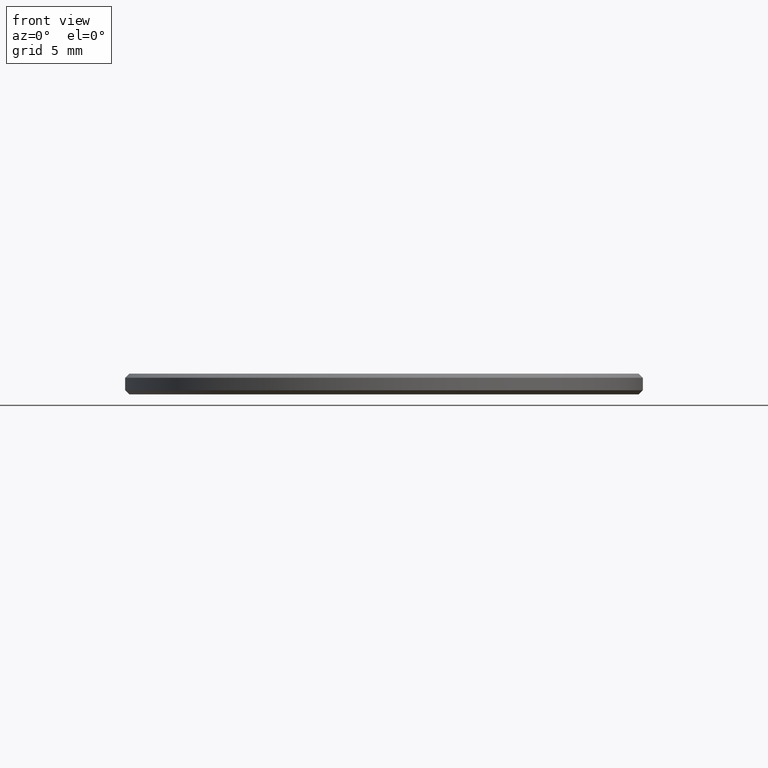
[diagram: clean part render]
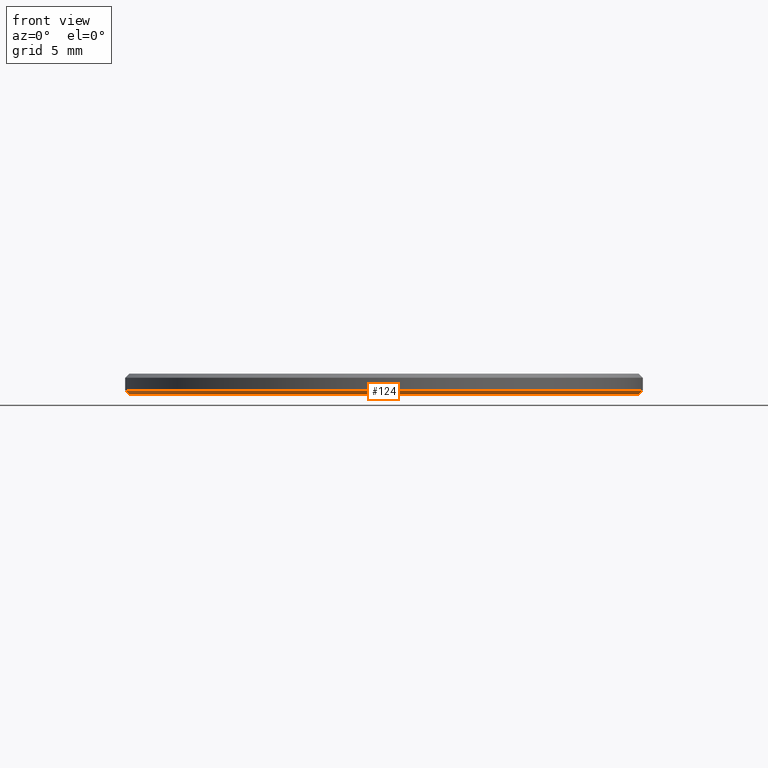
[diagram: same view with one face highlighted and labeled with its STEP entity id]
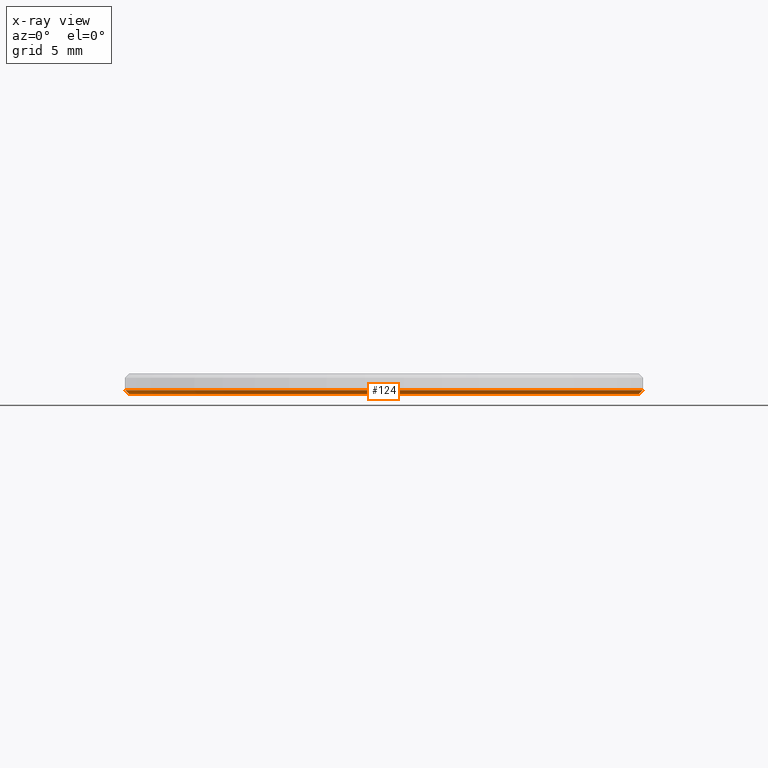
[diagram: x-ray of the same camera — body ghosted, the highlighted face saturated]
A machine part, front view. The second image highlights one B-rep face of the part: STEP entity #124.
The next image is the same camera in x-ray: the body ghosted, the highlighted face saturated — about 0% of this face is hidden behind the body in this view.
In plain terms, the highlighted conical surface has half-angle 45 deg.
Its self-contained STEP definition (entity closure, byte-faithful):
#8 = DIRECTION ( 'NONE',  ( -0.000000000000000000, -0.000000000000000000, -1.000000000000000000 ) ) ;
#12 = CARTESIAN_POINT ( 'NONE',  ( 12.50000000000000000, 0.000000000000000000, 0.1999999999999987899 ) ) ;
#19 = ORIENTED_EDGE ( 'NONE', *, *, #106, .T. ) ;
#20 = EDGE_LOOP ( 'NONE', ( #116, #65, #19, #187 ) ) ;
#24 = CARTESIAN_POINT ( 'NONE',  ( 0.000000000000000000, 0.000000000000000000, 0.000000000000000000 ) ) ;
#30 = DIRECTION ( 'NONE',  ( -0.000000000000000000, -0.000000000000000000, 1.000000000000000000 ) ) ;
#32 = CARTESIAN_POINT ( 'NONE',  ( 0.000000000000000000, 0.000000000000000000, 0.1999999999999987899 ) ) ;
#33 = EDGE_CURVE ( 'NONE', #151, #43, #72, .T. ) ;
#43 = VERTEX_POINT ( 'NONE', #134 ) ;
#47 = CARTESIAN_POINT ( 'NONE',  ( 12.30000000000000249, 0.000000000000000000, 0.000000000000000000 ) ) ;
#58 = AXIS2_PLACEMENT_3D ( 'NONE', #159, #95, #71 ) ;
#65 = ORIENTED_EDGE ( 'NONE', *, *, #33, .F. ) ;
#67 = LINE ( 'NONE', #12, #147 ) ;
#70 = DIRECTION ( 'NONE',  ( -0.7071067811865474617, 8.659560562354932858E-17, 0.7071067811865474617 ) ) ;
#71 = DIRECTION ( 'NONE',  ( 1.000000000000000000, 0.000000000000000000, 0.000000000000000000 ) ) ;
#72 = CIRCLE ( 'NONE', #201, 12.30000000000000249 ) ;
#82 = CIRCLE ( 'NONE', #58, 12.50000000000000000 ) ;
#88 = DIRECTION ( 'NONE',  ( 1.000000000000000000, 0.000000000000000000, 0.000000000000000000 ) ) ;
#91 = LINE ( 'NONE', #194, #94 ) ;
#93 = DIRECTION ( 'NONE',  ( 1.000000000000000000, 0.000000000000000000, 0.000000000000000000 ) ) ;
#94 = VECTOR ( 'NONE', #70, 1000.000000000000114 ) ;
#95 = DIRECTION ( 'NONE',  ( -0.000000000000000000, -0.000000000000000000, 1.000000000000000000 ) ) ;
#106 = EDGE_CURVE ( 'NONE', #151, #145, #67, .T. ) ;
#109 = DIRECTION ( 'NONE',  ( 0.7071067811865474617, 0.000000000000000000, 0.7071067811865474617 ) ) ;
#115 = VERTEX_POINT ( 'NONE', #195 ) ;
#116 = ORIENTED_EDGE ( 'NONE', *, *, #158, .F. ) ;
#124 = ADVANCED_FACE ( 'NONE', ( #125 ), #161, .T. ) ;
#125 = FACE_OUTER_BOUND ( 'NONE', #20, .T. ) ;
#131 = AXIS2_PLACEMENT_3D ( 'NONE', #32, #30, #93 ) ;
#134 = CARTESIAN_POINT ( 'NONE',  ( -12.30000000000000249, 1.518562030942718164E-15, 0.000000000000000000 ) ) ;
#145 = VERTEX_POINT ( 'NONE', #214 ) ;
#147 = VECTOR ( 'NONE', #109, 1000.000000000000114 ) ;
#151 = VERTEX_POINT ( 'NONE', #47 ) ;
#158 = EDGE_CURVE ( 'NONE', #43, #115, #91, .T. ) ;
#159 = CARTESIAN_POINT ( 'NONE',  ( 0.000000000000000000, 0.000000000000000000, 0.1999999999999987899 ) ) ;
#161 = CONICAL_SURFACE ( 'NONE', #131, 12.50000000000000000, 0.7853981633974482790 ) ;
#187 = ORIENTED_EDGE ( 'NONE', *, *, #200, .F. ) ;
#194 = CARTESIAN_POINT ( 'NONE',  ( -12.50000000000000000, 1.530808498934191521E-15, 0.1999999999999987899 ) ) ;
#195 = CARTESIAN_POINT ( 'NONE',  ( -12.50000000000000000, 0.000000000000000000, 0.1999999999999987899 ) ) ;
#200 = EDGE_CURVE ( 'NONE', #115, #145, #82, .T. ) ;
#201 = AXIS2_PLACEMENT_3D ( 'NONE', #24, #8, #88 ) ;
#214 = CARTESIAN_POINT ( 'NONE',  ( 12.50000000000000000, 1.530808498934191521E-15, 0.1999999999999987899 ) ) ;